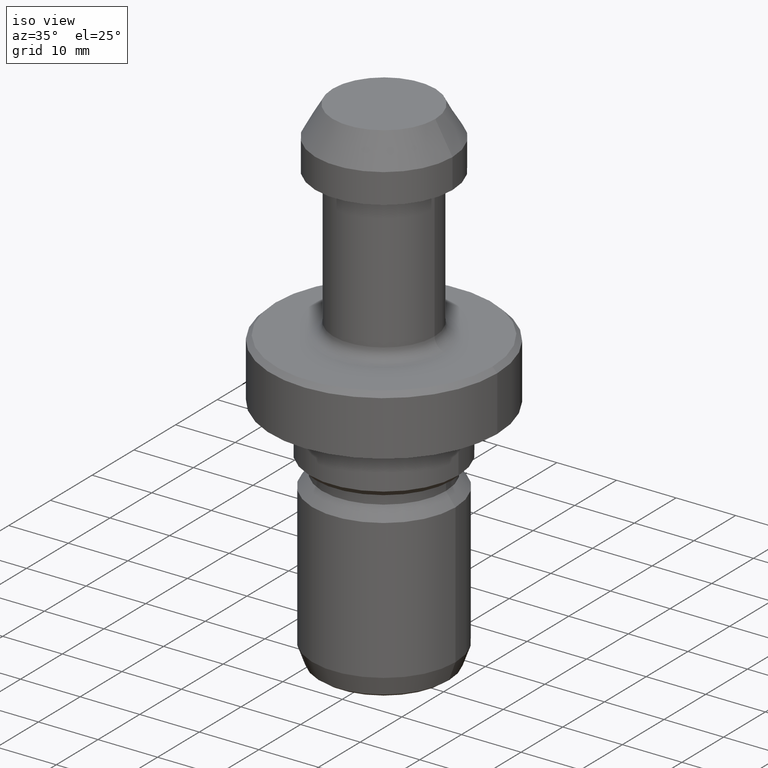
[diagram: clean part render]
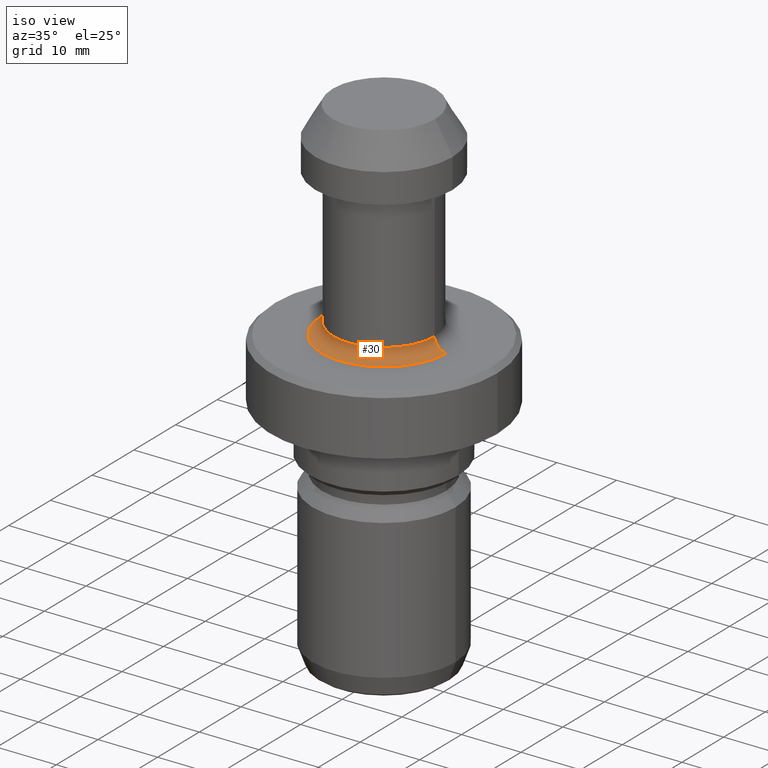
[diagram: same view with one face highlighted and labeled with its STEP entity id]
A machine part, iso view. The second image highlights one B-rep face of the part: STEP entity #30.
In plain terms, the highlighted toroidal blend (fillet) surface has major radius 10.5 mm and minor (blend) radius 2 mm.
Its self-contained STEP definition (entity closure, byte-faithful):
#15 = DIRECTION ( 'NONE',  ( 1.000000000000000000, 0.0000000000000000000, 0.0000000000000000000 ) ) ;
#21 = ORIENTED_EDGE ( 'NONE', *, *, #674, .F. ) ;
#30 = ADVANCED_FACE ( 'NONE', ( #1134 ), #217, .F. ) ;
#86 = CIRCLE ( 'NONE', #337, 2.000000000000001800 ) ;
#87 = ORIENTED_EDGE ( 'NONE', *, *, #689, .T. ) ;
#104 = AXIS2_PLACEMENT_3D ( 'NONE', #727, #194, #815 ) ;
#128 = CIRCLE ( 'NONE', #424, 8.500000000000001800 ) ;
#150 = ORIENTED_EDGE ( 'NONE', *, *, #917, .T. ) ;
#179 = EDGE_CURVE ( 'NONE', #975, #973, #86, .T. ) ;
#194 = DIRECTION ( 'NONE',  ( 1.224646799147353200E-016, 1.000000000000000000, 0.0000000000000000000 ) ) ;
#217 = TOROIDAL_SURFACE ( 'NONE', #1135, 10.50000000000000000, 2.000000000000000000 ) ;
#251 = CARTESIAN_POINT ( 'NONE',  ( 0.0000000000000000000, 0.0000000000000000000, -34.99999999999999300 ) ) ;
#294 = CARTESIAN_POINT ( 'NONE',  ( 0.0000000000000000000, 0.0000000000000000000, -32.99999999999998600 ) ) ;
#311 = CARTESIAN_POINT ( 'NONE',  ( 10.50000000000000000, 0.0000000000000000000, -34.99999999999999300 ) ) ;
#330 = EDGE_LOOP ( 'NONE', ( #21, #87, #150, #1033 ) ) ;
#337 = AXIS2_PLACEMENT_3D ( 'NONE', #1003, #485, #1091 ) ;
#358 = DIRECTION ( 'NONE',  ( 1.000000000000000000, 0.0000000000000000000, 0.0000000000000000000 ) ) ;
#424 = AXIS2_PLACEMENT_3D ( 'NONE', #1076, #570, #15 ) ;
#479 = VERTEX_POINT ( 'NONE', #513 ) ;
#485 = DIRECTION ( 'NONE',  ( 0.0000000000000000000, -1.000000000000000000, 0.0000000000000000000 ) ) ;
#513 = CARTESIAN_POINT ( 'NONE',  ( -10.50000000000000000, 1.285879139104720800E-015, -34.99999999999999300 ) ) ;
#570 = DIRECTION ( 'NONE',  ( -0.0000000000000000000, -0.0000000000000000000, 1.000000000000000000 ) ) ;
#600 = CARTESIAN_POINT ( 'NONE',  ( -8.500000000000001800, 1.163414459189985900E-015, -32.99999999999998600 ) ) ;
#651 = DIRECTION ( 'NONE',  ( 1.000000000000000000, 0.0000000000000000000, 0.0000000000000000000 ) ) ;
#674 = EDGE_CURVE ( 'NONE', #718, #975, #128, .T. ) ;
#689 = EDGE_CURVE ( 'NONE', #718, #479, #830, .T. ) ;
#718 = VERTEX_POINT ( 'NONE', #600 ) ;
#727 = CARTESIAN_POINT ( 'NONE',  ( -10.50000000000000000, 1.285879139104720800E-015, -32.99999999999998600 ) ) ;
#746 = CIRCLE ( 'NONE', #768, 10.50000000000000000 ) ;
#768 = AXIS2_PLACEMENT_3D ( 'NONE', #251, #872, #358 ) ;
#815 = DIRECTION ( 'NONE',  ( -1.000000000000000000, 1.224646799147353500E-016, 0.0000000000000000000 ) ) ;
#830 = CIRCLE ( 'NONE', #104, 2.000000000000000000 ) ;
#872 = DIRECTION ( 'NONE',  ( -0.0000000000000000000, -0.0000000000000000000, 1.000000000000000000 ) ) ;
#914 = CARTESIAN_POINT ( 'NONE',  ( 8.500000000000001800, 0.0000000000000000000, -32.99999999999998600 ) ) ;
#917 = EDGE_CURVE ( 'NONE', #479, #973, #746, .T. ) ;
#973 = VERTEX_POINT ( 'NONE', #311 ) ;
#975 = VERTEX_POINT ( 'NONE', #914 ) ;
#1003 = CARTESIAN_POINT ( 'NONE',  ( 10.50000000000000000, 0.0000000000000000000, -32.99999999999998600 ) ) ;
#1004 = DIRECTION ( 'NONE',  ( -0.0000000000000000000, -0.0000000000000000000, 1.000000000000000000 ) ) ;
#1033 = ORIENTED_EDGE ( 'NONE', *, *, #179, .F. ) ;
#1076 = CARTESIAN_POINT ( 'NONE',  ( 0.0000000000000000000, 0.0000000000000000000, -32.99999999999998600 ) ) ;
#1091 = DIRECTION ( 'NONE',  ( 0.0000000000000000000, 0.0000000000000000000, -1.000000000000000000 ) ) ;
#1134 = FACE_OUTER_BOUND ( 'NONE', #330, .T. ) ;
#1135 = AXIS2_PLACEMENT_3D ( 'NONE', #294, #1004, #651 ) ;